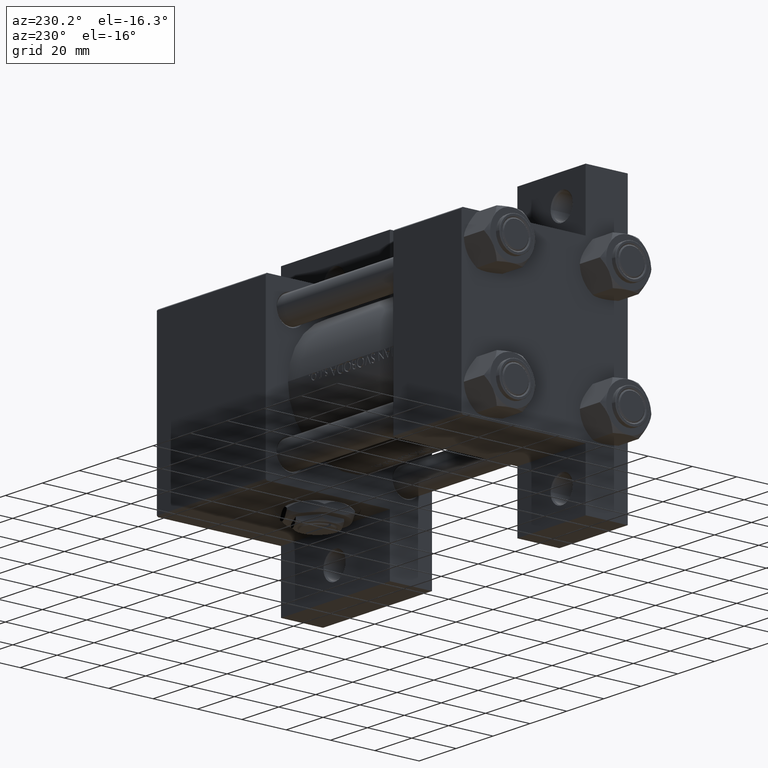
[diagram: clean part render]
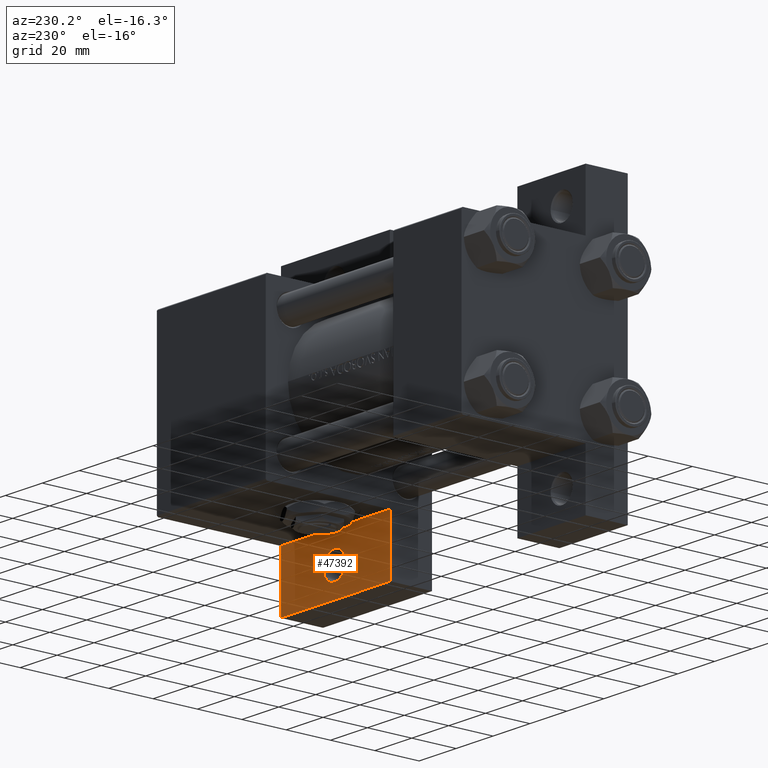
[diagram: same view with one face highlighted and labeled with its STEP entity id]
A machine part, auxiliary view. The second image highlights one B-rep face of the part: STEP entity #47392.
In plain terms, the highlighted planar face has unit normal (0, 1, 0).
Its self-contained STEP definition (entity closure, byte-faithful):
#2854 = ORIENTED_EDGE ( 'NONE', *, *, #10208, .F. ) ;
#2980 = CARTESIAN_POINT ( 'NONE',  ( 106.0000000000000142, 63.50000000000000000, -18.50000000000000000 ) ) ;
#4154 = VERTEX_POINT ( 'NONE', #26763 ) ;
#4264 = FACE_BOUND ( 'NONE', #29753, .T. ) ;
#4773 = ORIENTED_EDGE ( 'NONE', *, *, #18572, .F. ) ;
#5946 = VERTEX_POINT ( 'NONE', #34510 ) ;
#6221 = LINE ( 'NONE', #40584, #41683 ) ;
#7249 = CARTESIAN_POINT ( 'NONE',  ( 0.000000000000000000, 0.000000000000000000, -18.50000000000000000 ) ) ;
#7983 = FACE_OUTER_BOUND ( 'NONE', #29493, .T. ) ;
#9810 = CIRCLE ( 'NONE', #44848, 5.999500000000018929 ) ;
#10208 = EDGE_CURVE ( 'NONE', #5946, #4154, #43114, .T. ) ;
#12065 = ORIENTED_EDGE ( 'NONE', *, *, #15046, .F. ) ;
#12685 = AXIS2_PLACEMENT_3D ( 'NONE', #20362, #35537, #46998 ) ;
#14735 = DIRECTION ( 'NONE',  ( 0.000000000000000000, 0.000000000000000000, 1.000000000000000000 ) ) ;
#15046 = EDGE_CURVE ( 'NONE', #40735, #16363, #46355, .T. ) ;
#16363 = VERTEX_POINT ( 'NONE', #2980 ) ;
#16616 = VECTOR ( 'NONE', #49258, 1000.000000000000000 ) ;
#17224 = VERTEX_POINT ( 'NONE', #18174 ) ;
#18174 = CARTESIAN_POINT ( 'NONE',  ( 130.0004999999999882, 51.00000000000000000, -18.50000000000000000 ) ) ;
#18572 = EDGE_CURVE ( 'NONE', #4154, #40735, #19857, .T. ) ;
#18714 = DIRECTION ( 'NONE',  ( -0.000000000000000000, -0.000000000000000000, -1.000000000000000000 ) ) ;
#19857 = LINE ( 'NONE', #22601, #16616 ) ;
#20362 = CARTESIAN_POINT ( 'NONE',  ( 136.0000000000000000, 51.00000000000000000, -18.50000000000000000 ) ) ;
#21138 = VECTOR ( 'NONE', #47349, 1000.000000000000000 ) ;
#21598 = CARTESIAN_POINT ( 'NONE',  ( 106.0000000000000142, 37.50000000000000000, -18.50000000000000355 ) ) ;
#22601 = CARTESIAN_POINT ( 'NONE',  ( 106.0000000000000142, 37.50000000000000000, -18.50000000000000000 ) ) ;
#23184 = DIRECTION ( 'NONE',  ( 1.000000000000000000, 0.000000000000000000, -0.000000000000000000 ) ) ;
#23585 = EDGE_CURVE ( 'NONE', #26720, #17224, #44522, .T. ) ;
#26720 = VERTEX_POINT ( 'NONE', #36196 ) ;
#26763 = CARTESIAN_POINT ( 'NONE',  ( 164.9999999999999716, 37.49999999999997868, -18.50000000000000000 ) ) ;
#29229 = VECTOR ( 'NONE', #46613, 1000.000000000000000 ) ;
#29354 = DIRECTION ( 'NONE',  ( 1.000000000000000000, 0.000000000000000000, 0.000000000000000000 ) ) ;
#29493 = EDGE_LOOP ( 'NONE', ( #12065, #4773, #2854, #36455 ) ) ;
#29753 = EDGE_LOOP ( 'NONE', ( #42861, #36976 ) ) ;
#34510 = CARTESIAN_POINT ( 'NONE',  ( 165.0000000000000000, 63.50000000000000000, -18.50000000000000000 ) ) ;
#34705 = AXIS2_PLACEMENT_3D ( 'NONE', #7249, #14735, #23184 ) ;
#35537 = DIRECTION ( 'NONE',  ( -0.000000000000000000, -0.000000000000000000, -1.000000000000000000 ) ) ;
#35882 = CARTESIAN_POINT ( 'NONE',  ( 165.0000000000000000, 63.50000000000000000, -18.50000000000000000 ) ) ;
#36196 = CARTESIAN_POINT ( 'NONE',  ( 141.9995000000000402, 51.00000000000000000, -18.50000000000000000 ) ) ;
#36455 = ORIENTED_EDGE ( 'NONE', *, *, #37197, .F. ) ;
#36976 = ORIENTED_EDGE ( 'NONE', *, *, #37010, .T. ) ;
#37010 = EDGE_CURVE ( 'NONE', #17224, #26720, #9810, .T. ) ;
#37197 = EDGE_CURVE ( 'NONE', #16363, #5946, #6221, .T. ) ;
#40584 = CARTESIAN_POINT ( 'NONE',  ( 106.0000000000000142, 63.50000000000000000, -18.50000000000000000 ) ) ;
#40735 = VERTEX_POINT ( 'NONE', #21598 ) ;
#41683 = VECTOR ( 'NONE', #29354, 1000.000000000000000 ) ;
#42118 = DIRECTION ( 'NONE',  ( 1.000000000000000000, 0.000000000000000000, 0.000000000000000000 ) ) ;
#42861 = ORIENTED_EDGE ( 'NONE', *, *, #23585, .T. ) ;
#43101 = CARTESIAN_POINT ( 'NONE',  ( 106.0000000000000142, 63.50000000000000000, -18.50000000000000000 ) ) ;
#43114 = LINE ( 'NONE', #35882, #21138 ) ;
#44522 = CIRCLE ( 'NONE', #12685, 5.999500000000018929 ) ;
#44848 = AXIS2_PLACEMENT_3D ( 'NONE', #45125, #18714, #42118 ) ;
#45125 = CARTESIAN_POINT ( 'NONE',  ( 136.0000000000000000, 51.00000000000000000, -18.50000000000000000 ) ) ;
#46355 = LINE ( 'NONE', #43101, #29229 ) ;
#46613 = DIRECTION ( 'NONE',  ( -0.000000000000000000, 1.000000000000000000, -0.000000000000000000 ) ) ;
#46998 = DIRECTION ( 'NONE',  ( 1.000000000000000000, 0.000000000000000000, 0.000000000000000000 ) ) ;
#47349 = DIRECTION ( 'NONE',  ( -1.067522139062649685E-15, -1.000000000000000000, 0.000000000000000000 ) ) ;
#47392 = ADVANCED_FACE ( 'NONE', ( #4264, #7983 ), #48861, .T. ) ;
#48861 = PLANE ( 'NONE',  #34705 ) ;
#49258 = DIRECTION ( 'NONE',  ( -1.000000000000000000, 3.528251137579948571E-16, -0.000000000000000000 ) ) ;